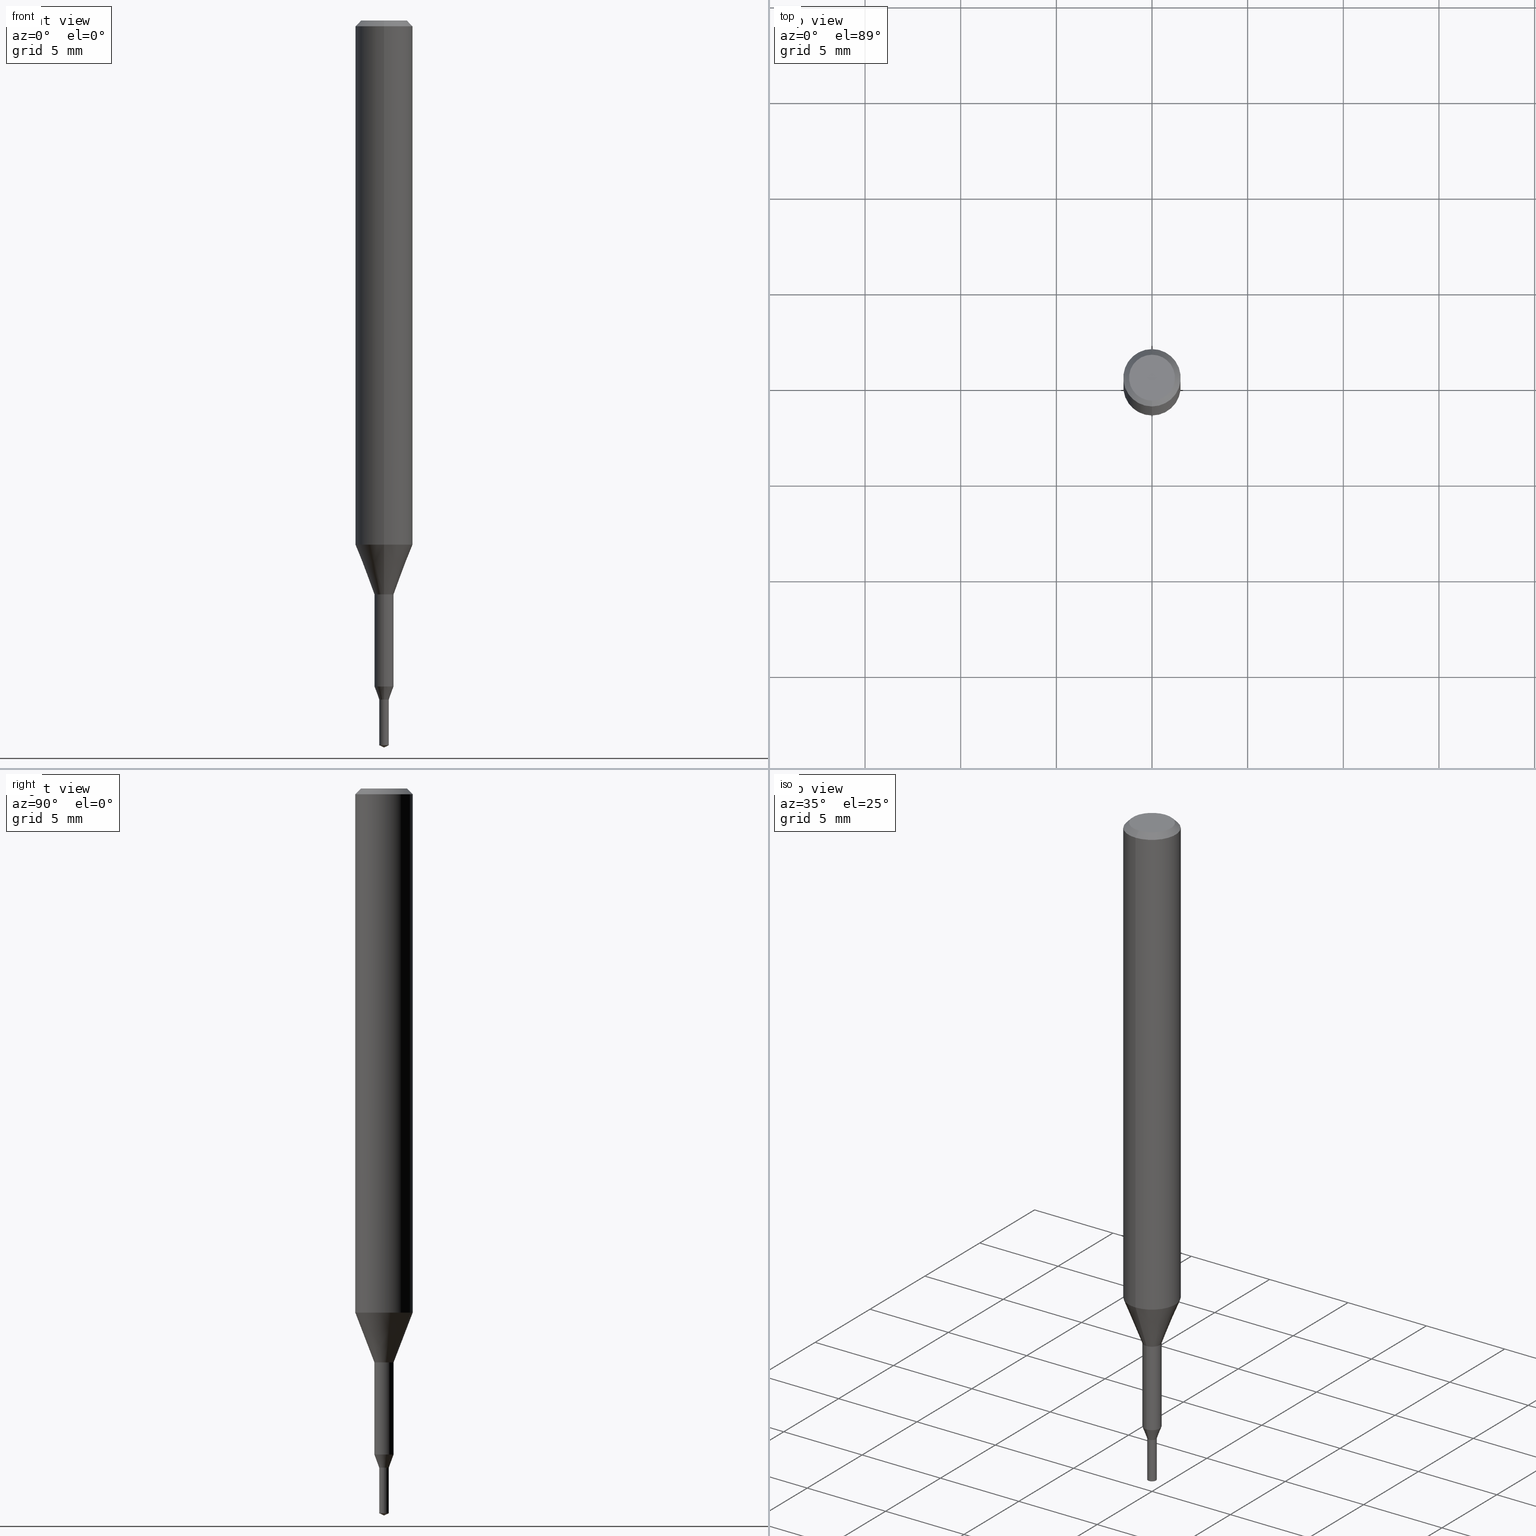
[diagram: canonical four-view strip — front | top / right | iso, engineering-drawing reading convention]
A machine part, canonical four-view strip (front | top / right | iso — engineering-drawing reading convention). The complete STEP part file that produces these views, byte-faithful:
ISO-10303-21;
HEADER;
FILE_DESCRIPTION(('no description'),'unknown implementation level');
FILE_NAME('UTDSX2050-025-Huellk.stp','  ',('CIMSOURCE GmbH'),('CADClick - KiM GmbH - www.kimweb.de'),'unknown preprocess','ACIS','unknown authorization');
FILE_SCHEMA(('automotive_design'));
ENDSEC;
DATA;
#1=MECHANICAL_DESIGN_GEOMETRIC_PRESENTATION_REPRESENTATION(' ',(#14,#15,#16,#17,#18,#19,#20,#21,#22,#23,#24,#25,#26,#27,#28,#29,#30,#31,#32,#33,#34,#35,#36,#37,#38,#39,#40,#41,#42,#43,#44,#45,#46,#47,#48,#49,#50,#51,#52,#53,#54,#55,#56,#57,#58,#59,#60,#61,#62,#63,#64,#65,#66,#67,#68,#69,#70,#71,#72,#73,#74,#75,#76,#77,#78,#79,#80,#81,#82,#83,#84,#85,#86,#87,#88,#89,#90,#91,#92),#10);
#2=PRODUCT_DEFINITION_CONTEXT('',#93,'design');
#3=APPLICATION_PROTOCOL_DEFINITION('INTERNATIONAL STANDARD','automotive_design',1994,#93);
#4=PRODUCT_CATEGORY_RELATIONSHIP('NONE','NONE',#94,#95);
#5=SHAPE_DEFINITION_REPRESENTATION(#96,#97);
#6=PRODUCT_DEFINITION_CONTEXT('',#98,'design');
#7=APPLICATION_PROTOCOL_DEFINITION('INTERNATIONAL STANDARD','automotive_design',1994,#98);
#8=PRODUCT_CATEGORY_RELATIONSHIP('NONE','NONE',#99,#100);
#9=SHAPE_DEFINITION_REPRESENTATION(#101,#102);
#10= (GEOMETRIC_REPRESENTATION_CONTEXT(3)GLOBAL_UNCERTAINTY_ASSIGNED_CONTEXT((#105))GLOBAL_UNIT_ASSIGNED_CONTEXT((#107,#108,#109))REPRESENTATION_CONTEXT('NONE','WORKSPACE'));
#14=STYLED_ITEM('',(#111),#112);
#15=STYLED_ITEM('',(#113),#114);
#16=STYLED_ITEM('',(#115),#116);
#17=STYLED_ITEM('',(#117),#118);
#18=STYLED_ITEM('',(#119),#120);
#19=STYLED_ITEM('',(#121),#122);
#20=STYLED_ITEM('',(#123),#124);
#21=STYLED_ITEM('',(#125),#126);
#22=STYLED_ITEM('',(#127),#128);
#23=STYLED_ITEM('',(#129),#130);
#24=STYLED_ITEM('',(#131),#132);
#25=STYLED_ITEM('',(#133),#134);
#26=STYLED_ITEM('',(#135),#136);
#27=STYLED_ITEM('',(#137),#138);
#28=STYLED_ITEM('',(#139),#140);
#29=STYLED_ITEM('',(#141),#142);
#30=STYLED_ITEM('',(#143),#144);
#31=STYLED_ITEM('',(#145),#146);
#32=STYLED_ITEM('',(#147),#148);
#33=STYLED_ITEM('',(#149),#150);
#34=STYLED_ITEM('',(#151),#152);
#35=STYLED_ITEM('',(#153),#154);
#36=STYLED_ITEM('',(#155),#156);
#37=STYLED_ITEM('',(#157),#158);
#38=STYLED_ITEM('',(#159),#160);
#39=STYLED_ITEM('',(#161),#162);
#40=STYLED_ITEM('',(#163),#164);
#41=STYLED_ITEM('',(#165),#166);
#42=STYLED_ITEM('',(#167),#168);
#43=STYLED_ITEM('',(#169),#170);
#44=STYLED_ITEM('',(#171),#172);
#45=STYLED_ITEM('',(#173),#174);
#46=STYLED_ITEM('',(#175),#176);
#47=STYLED_ITEM('',(#177),#178);
#48=STYLED_ITEM('',(#179),#180);
#49=STYLED_ITEM('',(#181),#182);
#50=STYLED_ITEM('',(#183),#184);
#51=STYLED_ITEM('',(#185),#186);
#52=STYLED_ITEM('',(#187),#188);
#53=STYLED_ITEM('',(#189),#190);
#54=STYLED_ITEM('',(#191),#192);
#55=STYLED_ITEM('',(#193),#194);
#56=STYLED_ITEM('',(#195),#196);
#57=STYLED_ITEM('',(#197),#198);
#58=STYLED_ITEM('',(#199),#200);
#59=STYLED_ITEM('',(#201),#202);
#60=STYLED_ITEM('',(#203),#204);
#61=STYLED_ITEM('',(#205),#206);
#62=STYLED_ITEM('',(#207),#208);
#63=STYLED_ITEM('',(#209),#210);
#64=STYLED_ITEM('',(#211),#212);
#65=STYLED_ITEM('',(#213),#214);
#66=STYLED_ITEM('',(#215),#216);
#67=STYLED_ITEM('',(#217),#218);
#68=STYLED_ITEM('',(#219),#220);
#69=STYLED_ITEM('',(#221),#222);
#70=STYLED_ITEM('',(#223),#224);
#71=STYLED_ITEM('',(#225),#226);
#72=STYLED_ITEM('',(#227),#228);
#73=STYLED_ITEM('',(#229),#230);
#74=STYLED_ITEM('',(#231),#232);
#75=STYLED_ITEM('',(#233),#234);
#76=STYLED_ITEM('',(#235),#236);
#77=STYLED_ITEM('',(#237),#238);
#78=STYLED_ITEM('',(#239),#240);
#79=STYLED_ITEM('',(#241),#242);
#80=STYLED_ITEM('',(#243),#244);
#81=STYLED_ITEM('',(#245),#246);
#82=STYLED_ITEM('',(#247),#248);
#83=STYLED_ITEM('',(#249),#250);
#84=STYLED_ITEM('',(#251),#252);
#85=STYLED_ITEM('',(#253),#254);
#86=STYLED_ITEM('',(#255),#256);
#87=STYLED_ITEM('',(#257),#258);
#88=STYLED_ITEM('',(#259),#260);
#89=STYLED_ITEM('',(#261),#262);
#90=STYLED_ITEM('',(#263),#264);
#91=STYLED_ITEM('',(#265),#266);
#92=STYLED_ITEM('',(#267),#268);
#93=APPLICATION_CONTEXT(' ');
#94=PRODUCT_CATEGORY('part','NONE');
#95=PRODUCT_RELATED_PRODUCT_CATEGORY('detail',' ',(#269));
#96=PRODUCT_DEFINITION_SHAPE('NONE','NONE',#270);
#97=ADVANCED_BREP_SHAPE_REPRESENTATION('1',(#146,#271),#10);
#98=APPLICATION_CONTEXT(' ');
#99=PRODUCT_CATEGORY('part','NONE');
#100=PRODUCT_RELATED_PRODUCT_CATEGORY('detail',' ',(#272));
#101=PRODUCT_DEFINITION_SHAPE('NONE','NONE',#273);
#102=ADVANCED_BREP_SHAPE_REPRESENTATION('2',(#128,#274),#10);
#105=UNCERTAINTY_MEASURE_WITH_UNIT(LENGTH_MEASURE(1.0E-006),#107,'','');
#107= (CONVERSION_BASED_UNIT('MILLIMETRE',#277)LENGTH_UNIT()NAMED_UNIT(#280));
#108= (NAMED_UNIT(#282)PLANE_ANGLE_UNIT()SI_UNIT($,.RADIAN.));
#109= (NAMED_UNIT(#282)SOLID_ANGLE_UNIT()SI_UNIT($,.STERADIAN.));
#111=PRESENTATION_STYLE_ASSIGNMENT((#288));
#112=EDGE_CURVE('',#122,#176,#289,.T.);
#113=PRESENTATION_STYLE_ASSIGNMENT((#290));
#114=VERTEX_POINT('',#291);
#115=PRESENTATION_STYLE_ASSIGNMENT((#292));
#116=EDGE_CURVE('',#132,#192,#293,.T.);
#117=PRESENTATION_STYLE_ASSIGNMENT((#294));
#118=EDGE_CURVE('',#148,#140,#295,.T.);
#119=PRESENTATION_STYLE_ASSIGNMENT((#296));
#120=EDGE_CURVE('',#236,#172,#297,.T.);
#121=PRESENTATION_STYLE_ASSIGNMENT((#298));
#122=VERTEX_POINT('',#299);
#123=PRESENTATION_STYLE_ASSIGNMENT((#300));
#124=ADVANCED_FACE('',(#301),#302,.T.);
#125=PRESENTATION_STYLE_ASSIGNMENT((#303));
#126=VERTEX_POINT('',#304);
#127=PRESENTATION_STYLE_ASSIGNMENT((#305));
#128=MANIFOLD_SOLID_BREP('2',#306);
#129=PRESENTATION_STYLE_ASSIGNMENT((#307));
#130=ADVANCED_FACE('',(#308),#309,.T.);
#131=PRESENTATION_STYLE_ASSIGNMENT((#310));
#132=VERTEX_POINT('',#311);
#133=PRESENTATION_STYLE_ASSIGNMENT((#312));
#134=EDGE_CURVE('',#216,#208,#313,.T.);
#135=PRESENTATION_STYLE_ASSIGNMENT((#314));
#136=ADVANCED_FACE('',(#315),#316,.T.);
#137=PRESENTATION_STYLE_ASSIGNMENT((#317));
#138=ADVANCED_FACE('',(#318),#319,.T.);
#139=PRESENTATION_STYLE_ASSIGNMENT((#320));
#140=VERTEX_POINT('',#321);
#141=PRESENTATION_STYLE_ASSIGNMENT((#322));
#142=EDGE_CURVE('',#212,#266,#323,.T.);
#143=PRESENTATION_STYLE_ASSIGNMENT((#324));
#144=ADVANCED_FACE('',(#325),#326,.T.);
#145=PRESENTATION_STYLE_ASSIGNMENT((#327));
#146=MANIFOLD_SOLID_BREP('1',#328);
#147=PRESENTATION_STYLE_ASSIGNMENT((#329));
#148=VERTEX_POINT('',#330);
#149=PRESENTATION_STYLE_ASSIGNMENT((#331));
#150=EDGE_CURVE('',#242,#226,#332,.T.);
#151=PRESENTATION_STYLE_ASSIGNMENT((#333));
#152=EDGE_CURVE('',#186,#154,#334,.T.);
#153=PRESENTATION_STYLE_ASSIGNMENT((#335));
#154=VERTEX_POINT('',#336);
#155=PRESENTATION_STYLE_ASSIGNMENT((#337));
#156=ADVANCED_FACE('',(#338),#339,.T.);
#157=PRESENTATION_STYLE_ASSIGNMENT((#340));
#158=VERTEX_POINT('',#341);
#159=PRESENTATION_STYLE_ASSIGNMENT((#342));
#160=EDGE_CURVE('',#222,#154,#343,.T.);
#161=PRESENTATION_STYLE_ASSIGNMENT((#344));
#162=ADVANCED_FACE('',(#345),#346,.T.);
#163=PRESENTATION_STYLE_ASSIGNMENT((#347));
#164=EDGE_CURVE('',#192,#140,#348,.T.);
#165=PRESENTATION_STYLE_ASSIGNMENT((#349));
#166=EDGE_CURVE('',#208,#192,#350,.T.);
#167=PRESENTATION_STYLE_ASSIGNMENT((#351));
#168=EDGE_CURVE('',#126,#222,#352,.T.);
#169=PRESENTATION_STYLE_ASSIGNMENT((#353));
#170=EDGE_CURVE('',#176,#122,#354,.T.);
#171=PRESENTATION_STYLE_ASSIGNMENT((#355));
#172=VERTEX_POINT('',#356);
#173=PRESENTATION_STYLE_ASSIGNMENT((#357));
#174=ADVANCED_FACE('',(#358),#359,.T.);
#175=PRESENTATION_STYLE_ASSIGNMENT((#360));
#176=VERTEX_POINT('',#361);
#177=PRESENTATION_STYLE_ASSIGNMENT((#362));
#178=EDGE_CURVE('',#114,#236,#363,.T.);
#179=PRESENTATION_STYLE_ASSIGNMENT((#364));
#180=EDGE_CURVE('',#242,#126,#365,.T.);
#181=PRESENTATION_STYLE_ASSIGNMENT((#366));
#182=EDGE_CURVE('',#158,#114,#367,.T.);
#183=PRESENTATION_STYLE_ASSIGNMENT((#368));
#184=EDGE_CURVE('',#258,#222,#369,.T.);
#185=PRESENTATION_STYLE_ASSIGNMENT((#370));
#186=VERTEX_POINT('',#371);
#187=PRESENTATION_STYLE_ASSIGNMENT((#372));
#188=EDGE_CURVE('',#212,#122,#373,.T.);
#189=PRESENTATION_STYLE_ASSIGNMENT((#374));
#190=EDGE_CURVE('',#222,#258,#375,.T.);
#191=PRESENTATION_STYLE_ASSIGNMENT((#376));
#192=VERTEX_POINT('',#377);
#193=PRESENTATION_STYLE_ASSIGNMENT((#378));
#194=EDGE_CURVE('',#266,#172,#379,.T.);
#195=PRESENTATION_STYLE_ASSIGNMENT((#380));
#196=EDGE_CURVE('',#236,#212,#381,.T.);
#197=PRESENTATION_STYLE_ASSIGNMENT((#382));
#198=EDGE_CURVE('',#266,#212,#383,.T.);
#199=PRESENTATION_STYLE_ASSIGNMENT((#384));
#200=EDGE_CURVE('',#148,#132,#385,.T.);
#201=PRESENTATION_STYLE_ASSIGNMENT((#386));
#202=EDGE_CURVE('',#186,#258,#387,.T.);
#203=PRESENTATION_STYLE_ASSIGNMENT((#388));
#204=ADVANCED_FACE('',(#389),#390,.T.);
#205=PRESENTATION_STYLE_ASSIGNMENT((#391));
#206=ADVANCED_FACE('',(#392),#393,.T.);
#207=PRESENTATION_STYLE_ASSIGNMENT((#394));
#208=VERTEX_POINT('',#395);
#209=PRESENTATION_STYLE_ASSIGNMENT((#396));
#210=ADVANCED_FACE('',(#397,#398),#399,.T.);
#211=PRESENTATION_STYLE_ASSIGNMENT((#400));
#212=VERTEX_POINT('',#401);
#213=PRESENTATION_STYLE_ASSIGNMENT((#402));
#214=EDGE_CURVE('',#114,#158,#403,.T.);
#215=PRESENTATION_STYLE_ASSIGNMENT((#404));
#216=VERTEX_POINT('',#405);
#217=PRESENTATION_STYLE_ASSIGNMENT((#406));
#218=EDGE_CURVE('',#208,#216,#407,.T.);
#219=PRESENTATION_STYLE_ASSIGNMENT((#408));
#220=EDGE_CURVE('',#172,#236,#409,.T.);
#221=PRESENTATION_STYLE_ASSIGNMENT((#410));
#222=VERTEX_POINT('',#411);
#223=PRESENTATION_STYLE_ASSIGNMENT((#412));
#224=EDGE_CURVE('',#132,#216,#413,.T.);
#225=PRESENTATION_STYLE_ASSIGNMENT((#414));
#226=VERTEX_POINT('',#415);
#227=PRESENTATION_STYLE_ASSIGNMENT((#416));
#228=EDGE_CURVE('',#154,#186,#417,.T.);
#229=PRESENTATION_STYLE_ASSIGNMENT((#418));
#230=EDGE_CURVE('',#192,#132,#419,.T.);
#231=PRESENTATION_STYLE_ASSIGNMENT((#420));
#232=EDGE_CURVE('',#258,#242,#421,.T.);
#233=PRESENTATION_STYLE_ASSIGNMENT((#422));
#234=ADVANCED_FACE('',(#423),#424,.T.);
#235=PRESENTATION_STYLE_ASSIGNMENT((#425));
#236=VERTEX_POINT('',#426);
#237=PRESENTATION_STYLE_ASSIGNMENT((#427));
#238=EDGE_CURVE('',#226,#126,#428,.T.);
#239=PRESENTATION_STYLE_ASSIGNMENT((#429));
#240=ADVANCED_FACE('',(#430),#431,.T.);
#241=PRESENTATION_STYLE_ASSIGNMENT((#432));
#242=VERTEX_POINT('',#433);
#243=PRESENTATION_STYLE_ASSIGNMENT((#434));
#244=ADVANCED_FACE('',(#435),#436,.T.);
#245=PRESENTATION_STYLE_ASSIGNMENT((#437));
#246=ADVANCED_FACE('',(#438),#439,.T.);
#247=PRESENTATION_STYLE_ASSIGNMENT((#440));
#248=ADVANCED_FACE('',(#441),#442,.T.);
#249=PRESENTATION_STYLE_ASSIGNMENT((#443));
#250=ADVANCED_FACE('',(#444),#445,.T.);
#251=PRESENTATION_STYLE_ASSIGNMENT((#446));
#252=EDGE_CURVE('',#140,#148,#447,.T.);
#253=PRESENTATION_STYLE_ASSIGNMENT((#448));
#254=EDGE_CURVE('',#126,#242,#449,.T.);
#255=PRESENTATION_STYLE_ASSIGNMENT((#450));
#256=ADVANCED_FACE('',(#451),#452,.T.);
#257=PRESENTATION_STYLE_ASSIGNMENT((#453));
#258=VERTEX_POINT('',#454);
#259=PRESENTATION_STYLE_ASSIGNMENT((#455));
#260=EDGE_CURVE('',#176,#266,#456,.T.);
#261=PRESENTATION_STYLE_ASSIGNMENT((#457));
#262=EDGE_CURVE('',#172,#158,#458,.T.);
#263=PRESENTATION_STYLE_ASSIGNMENT((#459));
#264=ADVANCED_FACE('',(#460),#461,.T.);
#265=PRESENTATION_STYLE_ASSIGNMENT((#462));
#266=VERTEX_POINT('',#463);
#267=PRESENTATION_STYLE_ASSIGNMENT((#464));
#268=ADVANCED_FACE('',(#465),#466,.T.);
#269=PRODUCT('1','1','PART-1-DESC',(#467));
#270=PRODUCT_DEFINITION('NONE','NONE',#468,#2);
#271=AXIS2_PLACEMENT_3D('',#469,#470,#471);
#272=PRODUCT('2','2','PART-2-DESC',(#472));
#273=PRODUCT_DEFINITION('NONE','NONE',#473,#6);
#274=AXIS2_PLACEMENT_3D('',#474,#475,#476);
#277=LENGTH_MEASURE_WITH_UNIT(LENGTH_MEASURE(1.0),#477);
#280=DIMENSIONAL_EXPONENTS(1.0,0.0,0.0,0.0,0.0,0.0,0.0);
#282=DIMENSIONAL_EXPONENTS(0.0,0.0,0.0,0.0,0.0,0.0,0.0);
#288=CURVE_STYLE('',#478,POSITIVE_LENGTH_MEASURE(1.0E-006),#479);
#289=CIRCLE('',#480,1.2);
#290=POINT_STYLE(' ',#481,POSITIVE_LENGTH_MEASURE(1.0E-006),#482);
#291=CARTESIAN_POINT('',(6.12303176911189E-017,-0.5,-30.0));
#292=CURVE_STYLE('',#483,POSITIVE_LENGTH_MEASURE(1.0E-006),#484);
#293=CIRCLE('',#485,0.49995);
#294=CURVE_STYLE('',#486,POSITIVE_LENGTH_MEASURE(1.0E-006),#487);
#295=CIRCLE('',#488,0.250036382823872);
#296=CURVE_STYLE('',#489,POSITIVE_LENGTH_MEASURE(1.0E-006),#490);
#297=CIRCLE('',#491,1.5);
#298=POINT_STYLE(' ',#492,POSITIVE_LENGTH_MEASURE(1.0E-006),#493);
#299=CARTESIAN_POINT('',(1.46952762458685E-016,-1.2,0.0));
#300=SURFACE_STYLE_USAGE(.BOTH.,#494);
#301=FACE_OUTER_BOUND('',#495,.T.);
#302=PLANE('',#496);
#303=POINT_STYLE(' ',#497,POSITIVE_LENGTH_MEASURE(1.0E-006),#498);
#304=CARTESIAN_POINT('',(0.25,3.06151588455594E-017,-37.88342309));
#305=SURFACE_STYLE_USAGE(.BOTH.,#499);
#306=CLOSED_SHELL('',(#264,#144,#268,#124,#136,#204,#162));
#307=SURFACE_STYLE_USAGE(.BOTH.,#500);
#308=FACE_OUTER_BOUND('',#501,.T.);
#309=CONICAL_SURFACE('',#502,0.374993191411936,0.348940459453639);
#310=POINT_STYLE(' ',#503,POSITIVE_LENGTH_MEASURE(1.0E-006),#504);
#311=CARTESIAN_POINT('',(6.12241946593498E-017,-0.49995,-34.813));
#312=CURVE_STYLE('',#505,POSITIVE_LENGTH_MEASURE(1.0E-006),#506);
#313=CIRCLE('',#507,0.49995);
#314=SURFACE_STYLE_USAGE(.BOTH.,#508);
#315=FACE_OUTER_BOUND('',#509,.T.);
#316=CONICAL_SURFACE('',#510,0.250518195050946,1.47460534053223);
#317=SURFACE_STYLE_USAGE(.BOTH.,#511);
#318=FACE_OUTER_BOUND('',#512,.T.);
#319=CONICAL_SURFACE('',#513,1.35,0.785398163397447);
#320=POINT_STYLE(' ',#514,POSITIVE_LENGTH_MEASURE(1.0E-006),#515);
#321=CARTESIAN_POINT('',(0.0,0.250036382823872,-35.4999));
#322=CURVE_STYLE('',#516,POSITIVE_LENGTH_MEASURE(1.0E-006),#517);
#323=CIRCLE('',#518,1.5);
#324=SURFACE_STYLE_USAGE(.BOTH.,#519);
#325=FACE_OUTER_BOUND('',#520,.T.);
#326=CYLINDRICAL_SURFACE('',#521,0.25);
#327=SURFACE_STYLE_USAGE(.BOTH.,#522);
#328=CLOSED_SHELL('',(#130,#174,#250,#244,#138,#206,#246,#248,#156,#210,#234,#240,#256));
#329=POINT_STYLE(' ',#523,POSITIVE_LENGTH_MEASURE(1.0E-006),#524);
#330=CARTESIAN_POINT('',(3.06196143092878E-017,-0.250036382823872,-35.4999));
#331=CURVE_STYLE('',#525,POSITIVE_LENGTH_MEASURE(1.0E-006),#526);
#332=LINE('',#527,#528);
#333=CURVE_STYLE('',#529,POSITIVE_LENGTH_MEASURE(1.0E-006),#530);
#334=CIRCLE('',#531,0.251036390101892);
#335=POINT_STYLE(' ',#532,POSITIVE_LENGTH_MEASURE(1.0E-006),#533);
#336=CARTESIAN_POINT('',(0.251036390101892,3.0742075835941E-017,-35.4999));
#337=SURFACE_STYLE_USAGE(.BOTH.,#534);
#338=FACE_OUTER_BOUND('',#535,.T.);
#339=CONICAL_SURFACE('',#536,1.0,0.366530581623394);
#340=POINT_STYLE(' ',#537,POSITIVE_LENGTH_MEASURE(1.0E-006),#538);
#341=CARTESIAN_POINT('',(0.0,0.5,-30.0));
#342=CURVE_STYLE('',#539,POSITIVE_LENGTH_MEASURE(1.0E-006),#540);
#343=LINE('',#541,#542);
#344=SURFACE_STYLE_USAGE(.BOTH.,#543);
#345=FACE_OUTER_BOUND('',#544,.T.);
#346=CONICAL_SURFACE('',#545,0.125,1.13446402870872);
#347=CURVE_STYLE('',#546,POSITIVE_LENGTH_MEASURE(1.0E-006),#547);
#348=LINE('',#548,#549);
#349=CURVE_STYLE('',#550,POSITIVE_LENGTH_MEASURE(1.0E-006),#551);
#350=LINE('',#552,#553);
#351=CURVE_STYLE('',#554,POSITIVE_LENGTH_MEASURE(1.0E-006),#555);
#352=LINE('',#556,#557);
#353=CURVE_STYLE('',#558,POSITIVE_LENGTH_MEASURE(1.0E-006),#559);
#354=CIRCLE('',#560,1.2);
#355=POINT_STYLE(' ',#561,POSITIVE_LENGTH_MEASURE(1.0E-006),#562);
#356=CARTESIAN_POINT('',(0.0,1.5,-27.395));
#357=SURFACE_STYLE_USAGE(.BOTH.,#563);
#358=FACE_OUTER_BOUND('',#564,.T.);
#359=CYLINDRICAL_SURFACE('',#565,0.49995);
#360=POINT_STYLE(' ',#566,POSITIVE_LENGTH_MEASURE(1.0E-006),#567);
#361=CARTESIAN_POINT('',(0.0,1.2,0.0));
#362=CURVE_STYLE('',#568,POSITIVE_LENGTH_MEASURE(1.0E-006),#569);
#363=LINE('',#570,#571);
#364=CURVE_STYLE('',#572,POSITIVE_LENGTH_MEASURE(1.0E-006),#573);
#365=CIRCLE('',#574,0.25);
#366=CURVE_STYLE('',#575,POSITIVE_LENGTH_MEASURE(1.0E-006),#576);
#367=CIRCLE('',#577,0.5);
#368=CURVE_STYLE('',#578,POSITIVE_LENGTH_MEASURE(1.0E-006),#579);
#369=CIRCLE('',#580,0.25);
#370=POINT_STYLE(' ',#581,POSITIVE_LENGTH_MEASURE(1.0E-006),#582);
#371=CARTESIAN_POINT('',(-0.251036390101892,0.0,-35.4999));
#372=CURVE_STYLE('',#583,POSITIVE_LENGTH_MEASURE(1.0E-006),#584);
#373=LINE('',#585,#586);
#374=CURVE_STYLE('',#587,POSITIVE_LENGTH_MEASURE(1.0E-006),#588);
#375=CIRCLE('',#589,0.25);
#376=POINT_STYLE(' ',#590,POSITIVE_LENGTH_MEASURE(1.0E-006),#591);
#377=CARTESIAN_POINT('',(0.0,0.49995,-34.813));
#378=CURVE_STYLE('',#592,POSITIVE_LENGTH_MEASURE(1.0E-006),#593);
#379=LINE('',#594,#595);
#380=CURVE_STYLE('',#596,POSITIVE_LENGTH_MEASURE(1.0E-006),#597);
#381=LINE('',#598,#599);
#382=CURVE_STYLE('',#600,POSITIVE_LENGTH_MEASURE(1.0E-006),#601);
#383=CIRCLE('',#602,1.5);
#384=CURVE_STYLE('',#603,POSITIVE_LENGTH_MEASURE(1.0E-006),#604);
#385=LINE('',#605,#606);
#386=CURVE_STYLE('',#607,POSITIVE_LENGTH_MEASURE(1.0E-006),#608);
#387=LINE('',#609,#610);
#388=SURFACE_STYLE_USAGE(.BOTH.,#611);
#389=FACE_OUTER_BOUND('',#612,.T.);
#390=CYLINDRICAL_SURFACE('',#613,0.25);
#391=SURFACE_STYLE_USAGE(.BOTH.,#614);
#392=FACE_OUTER_BOUND('',#615,.T.);
#393=PLANE('',#616);
#394=POINT_STYLE(' ',#617,POSITIVE_LENGTH_MEASURE(1.0E-006),#618);
#395=CARTESIAN_POINT('',(0.0,0.49995,-30.0));
#396=SURFACE_STYLE_USAGE(.BOTH.,#619);
#397=FACE_BOUND('',#620,.T.);
#398=FACE_OUTER_BOUND('',#621,.T.);
#399=PLANE('',#622);
#400=POINT_STYLE(' ',#623,POSITIVE_LENGTH_MEASURE(1.0E-006),#624);
#401=CARTESIAN_POINT('',(1.83690953073357E-016,-1.5,-0.300000000000001));
#402=CURVE_STYLE('',#625,POSITIVE_LENGTH_MEASURE(1.0E-006),#626);
#403=CIRCLE('',#627,0.5);
#404=POINT_STYLE(' ',#628,POSITIVE_LENGTH_MEASURE(1.0E-006),#629);
#405=CARTESIAN_POINT('',(6.12241946593498E-017,-0.49995,-30.0));
#406=CURVE_STYLE('',#630,POSITIVE_LENGTH_MEASURE(1.0E-006),#631);
#407=CIRCLE('',#632,0.49995);
#408=CURVE_STYLE('',#633,POSITIVE_LENGTH_MEASURE(1.0E-006),#634);
#409=CIRCLE('',#635,1.5);
#410=POINT_STYLE(' ',#636,POSITIVE_LENGTH_MEASURE(1.0E-006),#637);
#411=CARTESIAN_POINT('',(0.25,3.06151588455594E-017,-35.5));
#412=CURVE_STYLE('',#638,POSITIVE_LENGTH_MEASURE(1.0E-006),#639);
#413=LINE('',#640,#641);
#414=POINT_STYLE(' ',#642,POSITIVE_LENGTH_MEASURE(1.0E-006),#643);
#415=CARTESIAN_POINT('',(0.0,0.0,-38.0));
#416=CURVE_STYLE('',#644,POSITIVE_LENGTH_MEASURE(1.0E-006),#645);
#417=CIRCLE('',#646,0.251036390101892);
#418=CURVE_STYLE('',#647,POSITIVE_LENGTH_MEASURE(1.0E-006),#648);
#419=CIRCLE('',#649,0.49995);
#420=CURVE_STYLE('',#650,POSITIVE_LENGTH_MEASURE(1.0E-006),#651);
#421=LINE('',#652,#653);
#422=SURFACE_STYLE_USAGE(.BOTH.,#654);
#423=FACE_OUTER_BOUND('',#655,.T.);
#424=CYLINDRICAL_SURFACE('',#656,0.49995);
#425=POINT_STYLE(' ',#657,POSITIVE_LENGTH_MEASURE(1.0E-006),#658);
#426=CARTESIAN_POINT('',(1.83690953073357E-016,-1.5,-27.395));
#427=CURVE_STYLE('',#659,POSITIVE_LENGTH_MEASURE(1.0E-006),#660);
#428=LINE('',#661,#662);
#429=SURFACE_STYLE_USAGE(.BOTH.,#663);
#430=FACE_OUTER_BOUND('',#664,.T.);
#431=CONICAL_SURFACE('',#665,0.374993191411936,0.348940459453639);
#432=POINT_STYLE(' ',#666,POSITIVE_LENGTH_MEASURE(1.0E-006),#667);
#433=CARTESIAN_POINT('',(-0.25,0.0,-37.88342309));
#434=SURFACE_STYLE_USAGE(.BOTH.,#668);
#435=FACE_OUTER_BOUND('',#669,.T.);
#436=CYLINDRICAL_SURFACE('',#670,1.5);
#437=SURFACE_STYLE_USAGE(.BOTH.,#671);
#438=FACE_OUTER_BOUND('',#672,.T.);
#439=CONICAL_SURFACE('',#673,1.35,0.785398163397447);
#440=SURFACE_STYLE_USAGE(.BOTH.,#674);
#441=FACE_OUTER_BOUND('',#675,.T.);
#442=CYLINDRICAL_SURFACE('',#676,1.5);
#443=SURFACE_STYLE_USAGE(.BOTH.,#677);
#444=FACE_OUTER_BOUND('',#678,.T.);
#445=CONICAL_SURFACE('',#679,1.0,0.366530581623394);
#446=CURVE_STYLE('',#680,POSITIVE_LENGTH_MEASURE(1.0E-006),#681);
#447=CIRCLE('',#682,0.250036382823872);
#448=CURVE_STYLE('',#683,POSITIVE_LENGTH_MEASURE(1.0E-006),#684);
#449=CIRCLE('',#685,0.25);
#450=SURFACE_STYLE_USAGE(.BOTH.,#686);
#451=FACE_OUTER_BOUND('',#687,.T.);
#452=PLANE('',#688);
#453=POINT_STYLE(' ',#689,POSITIVE_LENGTH_MEASURE(1.0E-006),#690);
#454=CARTESIAN_POINT('',(-0.25,0.0,-35.5));
#455=CURVE_STYLE('',#691,POSITIVE_LENGTH_MEASURE(1.0E-006),#692);
#456=LINE('',#693,#694);
#457=CURVE_STYLE('',#695,POSITIVE_LENGTH_MEASURE(1.0E-006),#696);
#458=LINE('',#697,#698);
#459=SURFACE_STYLE_USAGE(.BOTH.,#699);
#460=FACE_OUTER_BOUND('',#700,.T.);
#461=CONICAL_SURFACE('',#701,0.125,1.13446402870872);
#462=POINT_STYLE(' ',#702,POSITIVE_LENGTH_MEASURE(1.0E-006),#703);
#463=CARTESIAN_POINT('',(0.0,1.5,-0.300000000000001));
#464=SURFACE_STYLE_USAGE(.BOTH.,#704);
#465=FACE_OUTER_BOUND('',#705,.T.);
#466=CONICAL_SURFACE('',#706,0.250518195050946,1.47460534053223);
#467=PRODUCT_CONTEXT('',#93,'mechanical');
#468=PRODUCT_DEFINITION_FORMATION_WITH_SPECIFIED_SOURCE(' ','NONE',#269,.NOT_KNOWN.);
#469=CARTESIAN_POINT('',(0.0,0.0,0.0));
#470=DIRECTION('',(0.0,0.0,1.0));
#471=DIRECTION('',(1.0,0.0,0.0));
#472=PRODUCT_CONTEXT('',#98,'mechanical');
#473=PRODUCT_DEFINITION_FORMATION_WITH_SPECIFIED_SOURCE(' ','NONE',#272,.NOT_KNOWN.);
#474=CARTESIAN_POINT('',(0.0,0.0,0.0));
#475=DIRECTION('',(0.0,0.0,1.0));
#476=DIRECTION('',(1.0,0.0,0.0));
#477= (NAMED_UNIT(#280)LENGTH_UNIT()SI_UNIT(.MILLI.,.METRE.));
#478=DRAUGHTING_PRE_DEFINED_CURVE_FONT('continuous');
#479=COLOUR_RGB('',0.498039215803146,0.498039215803146,0.498039215803146);
#480=AXIS2_PLACEMENT_3D('',#708,#709,#710);
#481=PRE_DEFINED_MARKER('');
#482=COLOUR_RGB('',0.498039215803146,0.498039215803146,0.498039215803146);
#483=DRAUGHTING_PRE_DEFINED_CURVE_FONT('continuous');
#484=COLOUR_RGB('',0.498039215803146,0.498039215803146,0.498039215803146);
#485=AXIS2_PLACEMENT_3D('',#711,#712,#713);
#486=DRAUGHTING_PRE_DEFINED_CURVE_FONT('continuous');
#487=COLOUR_RGB('',0.498039215803146,0.498039215803146,0.498039215803146);
#488=AXIS2_PLACEMENT_3D('',#714,#715,#716);
#489=DRAUGHTING_PRE_DEFINED_CURVE_FONT('continuous');
#490=COLOUR_RGB('',0.498039215803146,0.498039215803146,0.498039215803146);
#491=AXIS2_PLACEMENT_3D('',#717,#718,#719);
#492=PRE_DEFINED_MARKER('');
#493=COLOUR_RGB('',0.498039215803146,0.498039215803146,0.498039215803146);
#494=SURFACE_SIDE_STYLE('',(#720));
#495=EDGE_LOOP('',(#721,#722));
#496=AXIS2_PLACEMENT_3D('',#723,#724,#725);
#497=PRE_DEFINED_MARKER('');
#498=COLOUR_RGB('',0.800000011920929,0.800000011920929,0.800000011920929);
#499=SURFACE_SIDE_STYLE('',(#726));
#500=SURFACE_SIDE_STYLE('',(#727));
#501=EDGE_LOOP('',(#728,#729,#730,#731));
#502=AXIS2_PLACEMENT_3D('',#732,#733,#734);
#503=PRE_DEFINED_MARKER('');
#504=COLOUR_RGB('',0.498039215803146,0.498039215803146,0.498039215803146);
#505=DRAUGHTING_PRE_DEFINED_CURVE_FONT('continuous');
#506=COLOUR_RGB('',0.498039215803146,0.498039215803146,0.498039215803146);
#507=AXIS2_PLACEMENT_3D('',#735,#736,#737);
#508=SURFACE_SIDE_STYLE('',(#738));
#509=EDGE_LOOP('',(#739,#740,#741,#742));
#510=AXIS2_PLACEMENT_3D('',#743,#744,#745);
#511=SURFACE_SIDE_STYLE('',(#746));
#512=EDGE_LOOP('',(#747,#748,#749,#750));
#513=AXIS2_PLACEMENT_3D('',#751,#752,#753);
#514=PRE_DEFINED_MARKER('');
#515=COLOUR_RGB('',0.498039215803146,0.498039215803146,0.498039215803146);
#516=DRAUGHTING_PRE_DEFINED_CURVE_FONT('continuous');
#517=COLOUR_RGB('',0.498039215803146,0.498039215803146,0.498039215803146);
#518=AXIS2_PLACEMENT_3D('',#754,#755,#756);
#519=SURFACE_SIDE_STYLE('',(#757));
#520=EDGE_LOOP('',(#758,#759,#760,#761));
#521=AXIS2_PLACEMENT_3D('',#762,#763,#764);
#522=SURFACE_SIDE_STYLE('',(#765));
#523=PRE_DEFINED_MARKER('');
#524=COLOUR_RGB('',0.498039215803146,0.498039215803146,0.498039215803146);
#525=DRAUGHTING_PRE_DEFINED_CURVE_FONT('continuous');
#526=COLOUR_RGB('',0.800000011920929,0.800000011920929,0.800000011920929);
#527=CARTESIAN_POINT('',(-0.125,-1.53075794227797E-017,-37.941711545));
#528=VECTOR('',#766,1.0);
#529=DRAUGHTING_PRE_DEFINED_CURVE_FONT('continuous');
#530=COLOUR_RGB('',0.800000011920929,0.800000011920929,0.800000011920929);
#531=AXIS2_PLACEMENT_3D('',#767,#768,#769);
#532=PRE_DEFINED_MARKER('');
#533=COLOUR_RGB('',0.800000011920929,0.800000011920929,0.800000011920929);
#534=SURFACE_SIDE_STYLE('',(#770));
#535=EDGE_LOOP('',(#771,#772,#773,#774));
#536=AXIS2_PLACEMENT_3D('',#775,#776,#777);
#537=PRE_DEFINED_MARKER('');
#538=COLOUR_RGB('',0.498039215803146,0.498039215803146,0.498039215803146);
#539=DRAUGHTING_PRE_DEFINED_CURVE_FONT('continuous');
#540=COLOUR_RGB('',0.800000011920929,0.800000011920929,0.800000011920929);
#541=CARTESIAN_POINT('',(0.250518195050946,3.06786173407502E-017,-35.49995));
#542=VECTOR('',#778,1.0);
#543=SURFACE_SIDE_STYLE('',(#779));
#544=EDGE_LOOP('',(#780,#781,#782));
#545=AXIS2_PLACEMENT_3D('',#783,#784,#785);
#546=DRAUGHTING_PRE_DEFINED_CURVE_FONT('continuous');
#547=COLOUR_RGB('',0.498039215803146,0.498039215803146,0.498039215803146);
#548=CARTESIAN_POINT('',(-4.59219044843188E-017,0.374993191411936,-35.15645));
#549=VECTOR('',#786,1.0);
#550=DRAUGHTING_PRE_DEFINED_CURVE_FONT('continuous');
#551=COLOUR_RGB('',0.498039215803146,0.498039215803146,0.498039215803146);
#552=CARTESIAN_POINT('',(-6.12241946593498E-017,0.49995,-32.4065));
#553=VECTOR('',#787,1.0);
#554=DRAUGHTING_PRE_DEFINED_CURVE_FONT('continuous');
#555=COLOUR_RGB('',0.800000011920929,0.800000011920929,0.800000011920929);
#556=CARTESIAN_POINT('',(0.25,3.06151588455594E-017,-36.691711545));
#557=VECTOR('',#788,1.0);
#558=DRAUGHTING_PRE_DEFINED_CURVE_FONT('continuous');
#559=COLOUR_RGB('',0.498039215803146,0.498039215803146,0.498039215803146);
#560=AXIS2_PLACEMENT_3D('',#789,#790,#791);
#561=PRE_DEFINED_MARKER('');
#562=COLOUR_RGB('',0.498039215803146,0.498039215803146,0.498039215803146);
#563=SURFACE_SIDE_STYLE('',(#792));
#564=EDGE_LOOP('',(#793,#794,#795,#796));
#565=AXIS2_PLACEMENT_3D('',#797,#798,#799);
#566=PRE_DEFINED_MARKER('');
#567=COLOUR_RGB('',0.498039215803146,0.498039215803146,0.498039215803146);
#568=DRAUGHTING_PRE_DEFINED_CURVE_FONT('continuous');
#569=COLOUR_RGB('',0.498039215803146,0.498039215803146,0.498039215803146);
#570=CARTESIAN_POINT('',(1.22460635382238E-016,-1.0,-28.6975));
#571=VECTOR('',#800,1.0);
#572=DRAUGHTING_PRE_DEFINED_CURVE_FONT('continuous');
#573=COLOUR_RGB('',0.800000011920929,0.800000011920929,0.800000011920929);
#574=AXIS2_PLACEMENT_3D('',#801,#802,#803);
#575=DRAUGHTING_PRE_DEFINED_CURVE_FONT('continuous');
#576=COLOUR_RGB('',0.498039215803146,0.498039215803146,0.498039215803146);
#577=AXIS2_PLACEMENT_3D('',#804,#805,#806);
#578=DRAUGHTING_PRE_DEFINED_CURVE_FONT('continuous');
#579=COLOUR_RGB('',0.800000011920929,0.800000011920929,0.800000011920929);
#580=AXIS2_PLACEMENT_3D('',#807,#808,#809);
#581=PRE_DEFINED_MARKER('');
#582=COLOUR_RGB('',0.800000011920929,0.800000011920929,0.800000011920929);
#583=DRAUGHTING_PRE_DEFINED_CURVE_FONT('continuous');
#584=COLOUR_RGB('',0.498039215803146,0.498039215803146,0.498039215803146);
#585=CARTESIAN_POINT('',(1.65321857766021E-016,-1.35,-0.150000000000002));
#586=VECTOR('',#810,1.0);
#587=DRAUGHTING_PRE_DEFINED_CURVE_FONT('continuous');
#588=COLOUR_RGB('',0.800000011920929,0.800000011920929,0.800000011920929);
#589=AXIS2_PLACEMENT_3D('',#811,#812,#813);
#590=PRE_DEFINED_MARKER('');
#591=COLOUR_RGB('',0.498039215803146,0.498039215803146,0.498039215803146);
#592=DRAUGHTING_PRE_DEFINED_CURVE_FONT('continuous');
#593=COLOUR_RGB('',0.498039215803146,0.498039215803146,0.498039215803146);
#594=CARTESIAN_POINT('',(-1.83690953073357E-016,1.5,-13.8475));
#595=VECTOR('',#814,1.0);
#596=DRAUGHTING_PRE_DEFINED_CURVE_FONT('continuous');
#597=COLOUR_RGB('',0.498039215803146,0.498039215803146,0.498039215803146);
#598=CARTESIAN_POINT('',(1.83690953073357E-016,-1.5,-13.8475));
#599=VECTOR('',#815,1.0);
#600=DRAUGHTING_PRE_DEFINED_CURVE_FONT('continuous');
#601=COLOUR_RGB('',0.498039215803146,0.498039215803146,0.498039215803146);
#602=AXIS2_PLACEMENT_3D('',#816,#817,#818);
#603=DRAUGHTING_PRE_DEFINED_CURVE_FONT('continuous');
#604=COLOUR_RGB('',0.498039215803146,0.498039215803146,0.498039215803146);
#605=CARTESIAN_POINT('',(4.59219044843188E-017,-0.374993191411936,-35.15645));
#606=VECTOR('',#819,1.0);
#607=DRAUGHTING_PRE_DEFINED_CURVE_FONT('continuous');
#608=COLOUR_RGB('',0.800000011920929,0.800000011920929,0.800000011920929);
#609=CARTESIAN_POINT('',(-0.250518195050946,-3.06786173407502E-017,-35.49995));
#610=VECTOR('',#820,1.0);
#611=SURFACE_SIDE_STYLE('',(#821));
#612=EDGE_LOOP('',(#822,#823,#824,#825));
#613=AXIS2_PLACEMENT_3D('',#826,#827,#828);
#614=SURFACE_SIDE_STYLE('',(#829));
#615=EDGE_LOOP('',(#830,#831));
#616=AXIS2_PLACEMENT_3D('',#832,#833,#834);
#617=PRE_DEFINED_MARKER('');
#618=COLOUR_RGB('',0.498039215803146,0.498039215803146,0.498039215803146);
#619=SURFACE_SIDE_STYLE('',(#835));
#620=EDGE_LOOP('',(#836,#837));
#621=EDGE_LOOP('',(#838,#839));
#622=AXIS2_PLACEMENT_3D('',#840,#841,#842);
#623=PRE_DEFINED_MARKER('');
#624=COLOUR_RGB('',0.498039215803146,0.498039215803146,0.498039215803146);
#625=DRAUGHTING_PRE_DEFINED_CURVE_FONT('continuous');
#626=COLOUR_RGB('',0.498039215803146,0.498039215803146,0.498039215803146);
#627=AXIS2_PLACEMENT_3D('',#843,#844,#845);
#628=PRE_DEFINED_MARKER('');
#629=COLOUR_RGB('',0.498039215803146,0.498039215803146,0.498039215803146);
#630=DRAUGHTING_PRE_DEFINED_CURVE_FONT('continuous');
#631=COLOUR_RGB('',0.498039215803146,0.498039215803146,0.498039215803146);
#632=AXIS2_PLACEMENT_3D('',#846,#847,#848);
#633=DRAUGHTING_PRE_DEFINED_CURVE_FONT('continuous');
#634=COLOUR_RGB('',0.498039215803146,0.498039215803146,0.498039215803146);
#635=AXIS2_PLACEMENT_3D('',#849,#850,#851);
#636=PRE_DEFINED_MARKER('');
#637=COLOUR_RGB('',0.800000011920929,0.800000011920929,0.800000011920929);
#638=DRAUGHTING_PRE_DEFINED_CURVE_FONT('continuous');
#639=COLOUR_RGB('',0.498039215803146,0.498039215803146,0.498039215803146);
#640=CARTESIAN_POINT('',(6.12241946593498E-017,-0.49995,-32.4065));
#641=VECTOR('',#852,1.0);
#642=PRE_DEFINED_MARKER('');
#643=COLOUR_RGB('',0.800000011920929,0.800000011920929,0.800000011920929);
#644=DRAUGHTING_PRE_DEFINED_CURVE_FONT('continuous');
#645=COLOUR_RGB('',0.800000011920929,0.800000011920929,0.800000011920929);
#646=AXIS2_PLACEMENT_3D('',#853,#854,#855);
#647=DRAUGHTING_PRE_DEFINED_CURVE_FONT('continuous');
#648=COLOUR_RGB('',0.498039215803146,0.498039215803146,0.498039215803146);
#649=AXIS2_PLACEMENT_3D('',#856,#857,#858);
#650=DRAUGHTING_PRE_DEFINED_CURVE_FONT('continuous');
#651=COLOUR_RGB('',0.800000011920929,0.800000011920929,0.800000011920929);
#652=CARTESIAN_POINT('',(-0.25,-3.06151588455594E-017,-36.691711545));
#653=VECTOR('',#859,1.0);
#654=SURFACE_SIDE_STYLE('',(#860));
#655=EDGE_LOOP('',(#861,#862,#863,#864));
#656=AXIS2_PLACEMENT_3D('',#865,#866,#867);
#657=PRE_DEFINED_MARKER('');
#658=COLOUR_RGB('',0.498039215803146,0.498039215803146,0.498039215803146);
#659=DRAUGHTING_PRE_DEFINED_CURVE_FONT('continuous');
#660=COLOUR_RGB('',0.800000011920929,0.800000011920929,0.800000011920929);
#661=CARTESIAN_POINT('',(0.125,1.53075794227797E-017,-37.941711545));
#662=VECTOR('',#868,1.0);
#663=SURFACE_SIDE_STYLE('',(#869));
#664=EDGE_LOOP('',(#870,#871,#872,#873));
#665=AXIS2_PLACEMENT_3D('',#874,#875,#876);
#666=PRE_DEFINED_MARKER('');
#667=COLOUR_RGB('',0.800000011920929,0.800000011920929,0.800000011920929);
#668=SURFACE_SIDE_STYLE('',(#877));
#669=EDGE_LOOP('',(#878,#879,#880,#881));
#670=AXIS2_PLACEMENT_3D('',#882,#883,#884);
#671=SURFACE_SIDE_STYLE('',(#885));
#672=EDGE_LOOP('',(#886,#887,#888,#889));
#673=AXIS2_PLACEMENT_3D('',#890,#891,#892);
#674=SURFACE_SIDE_STYLE('',(#893));
#675=EDGE_LOOP('',(#894,#895,#896,#897));
#676=AXIS2_PLACEMENT_3D('',#898,#899,#900);
#677=SURFACE_SIDE_STYLE('',(#901));
#678=EDGE_LOOP('',(#902,#903,#904,#905));
#679=AXIS2_PLACEMENT_3D('',#906,#907,#908);
#680=DRAUGHTING_PRE_DEFINED_CURVE_FONT('continuous');
#681=COLOUR_RGB('',0.498039215803146,0.498039215803146,0.498039215803146);
#682=AXIS2_PLACEMENT_3D('',#909,#910,#911);
#683=DRAUGHTING_PRE_DEFINED_CURVE_FONT('continuous');
#684=COLOUR_RGB('',0.800000011920929,0.800000011920929,0.800000011920929);
#685=AXIS2_PLACEMENT_3D('',#912,#913,#914);
#686=SURFACE_SIDE_STYLE('',(#915));
#687=EDGE_LOOP('',(#916,#917));
#688=AXIS2_PLACEMENT_3D('',#918,#919,#920);
#689=PRE_DEFINED_MARKER('');
#690=COLOUR_RGB('',0.800000011920929,0.800000011920929,0.800000011920929);
#691=DRAUGHTING_PRE_DEFINED_CURVE_FONT('continuous');
#692=COLOUR_RGB('',0.498039215803146,0.498039215803146,0.498039215803146);
#693=CARTESIAN_POINT('',(-1.65321857766021E-016,1.35,-0.150000000000002));
#694=VECTOR('',#921,1.0);
#695=DRAUGHTING_PRE_DEFINED_CURVE_FONT('continuous');
#696=COLOUR_RGB('',0.498039215803146,0.498039215803146,0.498039215803146);
#697=CARTESIAN_POINT('',(-1.22460635382238E-016,1.0,-28.6975));
#698=VECTOR('',#922,1.0);
#699=SURFACE_SIDE_STYLE('',(#923));
#700=EDGE_LOOP('',(#924,#925,#926));
#701=AXIS2_PLACEMENT_3D('',#927,#928,#929);
#702=PRE_DEFINED_MARKER('');
#703=COLOUR_RGB('',0.498039215803146,0.498039215803146,0.498039215803146);
#704=SURFACE_SIDE_STYLE('',(#930));
#705=EDGE_LOOP('',(#931,#932,#933,#934));
#706=AXIS2_PLACEMENT_3D('',#935,#936,#937);
#708=CARTESIAN_POINT('',(0.0,0.0,0.0));
#709=DIRECTION('',(0.0,0.0,-1.0));
#710=DIRECTION('',(0.0,1.0,0.0));
#711=CARTESIAN_POINT('',(0.0,0.0,-34.813));
#712=DIRECTION('',(0.0,0.0,-1.0));
#713=DIRECTION('',(0.0,1.0,0.0));
#714=CARTESIAN_POINT('',(0.0,0.0,-35.4999));
#715=DIRECTION('',(0.0,0.0,-1.0));
#716=DIRECTION('',(0.0,1.0,0.0));
#717=CARTESIAN_POINT('',(0.0,0.0,-27.395));
#718=DIRECTION('',(0.0,0.0,-1.0));
#719=DIRECTION('',(0.0,1.0,0.0));
#720=SURFACE_STYLE_FILL_AREA(#938);
#721=ORIENTED_EDGE('',*,*,#152,.F.);
#722=ORIENTED_EDGE('',*,*,#228,.F.);
#723=CARTESIAN_POINT('',(-0.125518195050946,0.0,-35.4999));
#724=DIRECTION('',(0.0,0.0,1.0));
#725=DIRECTION('',(1.0,0.0,0.0));
#726=SURFACE_STYLE_FILL_AREA(#939);
#727=SURFACE_STYLE_FILL_AREA(#940);
#728=ORIENTED_EDGE('',*,*,#164,.F.);
#729=ORIENTED_EDGE('',*,*,#230,.T.);
#730=ORIENTED_EDGE('',*,*,#200,.F.);
#731=ORIENTED_EDGE('',*,*,#252,.F.);
#732=CARTESIAN_POINT('',(0.0,0.0,-35.15645));
#733=DIRECTION('',(-0.0,-0.0,1.0));
#734=DIRECTION('',(0.0,1.0,0.0));
#735=CARTESIAN_POINT('',(0.0,0.0,-30.0));
#736=DIRECTION('',(0.0,0.0,-1.0));
#737=DIRECTION('',(0.0,1.0,0.0));
#738=SURFACE_STYLE_FILL_AREA(#941);
#739=ORIENTED_EDGE('',*,*,#202,.T.);
#740=ORIENTED_EDGE('',*,*,#190,.F.);
#741=ORIENTED_EDGE('',*,*,#160,.T.);
#742=ORIENTED_EDGE('',*,*,#228,.T.);
#743=CARTESIAN_POINT('',(0.0,0.0,-35.49995));
#744=DIRECTION('',(-0.0,-0.0,1.0));
#745=DIRECTION('',(-1.0,0.0,0.0));
#746=SURFACE_STYLE_FILL_AREA(#942);
#747=ORIENTED_EDGE('',*,*,#260,.F.);
#748=ORIENTED_EDGE('',*,*,#170,.T.);
#749=ORIENTED_EDGE('',*,*,#188,.F.);
#750=ORIENTED_EDGE('',*,*,#198,.F.);
#751=CARTESIAN_POINT('',(0.0,0.0,-0.150000000000002));
#752=DIRECTION('',(0.0,-0.0,-1.0));
#753=DIRECTION('',(0.0,1.0,0.0));
#754=CARTESIAN_POINT('',(0.0,0.0,-0.300000000000001));
#755=DIRECTION('',(0.0,0.0,-1.0));
#756=DIRECTION('',(0.0,1.0,0.0));
#757=SURFACE_STYLE_FILL_AREA(#943);
#758=ORIENTED_EDGE('',*,*,#232,.F.);
#759=ORIENTED_EDGE('',*,*,#184,.T.);
#760=ORIENTED_EDGE('',*,*,#168,.F.);
#761=ORIENTED_EDGE('',*,*,#180,.F.);
#762=CARTESIAN_POINT('',(0.0,0.0,-36.691711545));
#763=DIRECTION('',(-0.0,-0.0,1.0));
#764=DIRECTION('',(-1.0,0.0,0.0));
#765=SURFACE_STYLE_FILL_AREA(#944);
#766=DIRECTION('',(0.906307793338905,1.10987028224156E-016,-0.422618248225469));
#767=CARTESIAN_POINT('',(0.0,0.0,-35.4999));
#768=DIRECTION('',(0.0,0.0,-1.0));
#769=DIRECTION('',(-1.0,0.0,0.0));
#770=SURFACE_STYLE_FILL_AREA(#945);
#771=ORIENTED_EDGE('',*,*,#262,.T.);
#772=ORIENTED_EDGE('',*,*,#214,.F.);
#773=ORIENTED_EDGE('',*,*,#178,.T.);
#774=ORIENTED_EDGE('',*,*,#120,.T.);
#775=CARTESIAN_POINT('',(0.0,0.0,-28.6975));
#776=DIRECTION('',(-0.0,-0.0,1.0));
#777=DIRECTION('',(0.0,1.0,0.0));
#778=DIRECTION('',(0.995377213171106,1.21894525969935E-016,0.0960427170571633));
#779=SURFACE_STYLE_FILL_AREA(#946);
#780=ORIENTED_EDGE('',*,*,#238,.T.);
#781=ORIENTED_EDGE('',*,*,#254,.T.);
#782=ORIENTED_EDGE('',*,*,#150,.T.);
#783=CARTESIAN_POINT('',(0.0,0.0,-37.941711545));
#784=DIRECTION('',(-0.0,-0.0,1.0));
#785=DIRECTION('',(-1.0,0.0,0.0));
#786=DIRECTION('',(4.18695743283678E-017,-0.341902311691262,-0.939735499627513));
#787=DIRECTION('',(0.0,0.0,-1.0));
#788=DIRECTION('',(-0.0,-0.0,1.0));
#789=CARTESIAN_POINT('',(0.0,0.0,0.0));
#790=DIRECTION('',(0.0,0.0,-1.0));
#791=DIRECTION('',(0.0,1.0,0.0));
#792=SURFACE_STYLE_FILL_AREA(#947);
#793=ORIENTED_EDGE('',*,*,#166,.F.);
#794=ORIENTED_EDGE('',*,*,#218,.T.);
#795=ORIENTED_EDGE('',*,*,#224,.F.);
#796=ORIENTED_EDGE('',*,*,#230,.F.);
#797=CARTESIAN_POINT('',(0.0,0.0,-32.4065));
#798=DIRECTION('',(-0.0,-0.0,1.0));
#799=DIRECTION('',(0.0,1.0,0.0));
#800=DIRECTION('',(4.38872745501645E-017,-0.35837862847256,0.933576327171018));
#801=CARTESIAN_POINT('',(0.0,0.0,-37.88342309));
#802=DIRECTION('',(0.0,0.0,-1.0));
#803=DIRECTION('',(-1.0,0.0,0.0));
#804=CARTESIAN_POINT('',(0.0,0.0,-30.0));
#805=DIRECTION('',(0.0,0.0,-1.0));
#806=DIRECTION('',(0.0,1.0,0.0));
#807=CARTESIAN_POINT('',(0.0,0.0,-35.5));
#808=DIRECTION('',(0.0,0.0,-1.0));
#809=DIRECTION('',(-1.0,0.0,0.0));
#810=DIRECTION('',(-8.65927457071934E-017,0.707106781186546,0.707106781186549));
#811=CARTESIAN_POINT('',(0.0,0.0,-35.5));
#812=DIRECTION('',(0.0,0.0,-1.0));
#813=DIRECTION('',(-1.0,0.0,0.0));
#814=DIRECTION('',(0.0,0.0,-1.0));
#815=DIRECTION('',(-0.0,-0.0,1.0));
#816=CARTESIAN_POINT('',(0.0,0.0,-0.300000000000001));
#817=DIRECTION('',(0.0,0.0,-1.0));
#818=DIRECTION('',(0.0,1.0,0.0));
#819=DIRECTION('',(4.18695743283679E-017,-0.341902311691262,0.939735499627513));
#820=DIRECTION('',(0.995377213171106,1.21894525969935E-016,-0.0960427170571633));
#821=SURFACE_STYLE_FILL_AREA(#948);
#822=ORIENTED_EDGE('',*,*,#232,.T.);
#823=ORIENTED_EDGE('',*,*,#254,.F.);
#824=ORIENTED_EDGE('',*,*,#168,.T.);
#825=ORIENTED_EDGE('',*,*,#190,.T.);
#826=CARTESIAN_POINT('',(0.0,0.0,-36.691711545));
#827=DIRECTION('',(-0.0,-0.0,1.0));
#828=DIRECTION('',(-1.0,0.0,0.0));
#829=SURFACE_STYLE_FILL_AREA(#949);
#830=ORIENTED_EDGE('',*,*,#170,.F.);
#831=ORIENTED_EDGE('',*,*,#112,.F.);
#832=CARTESIAN_POINT('',(0.0,0.6,0.0));
#833=DIRECTION('',(-0.0,0.0,1.0));
#834=DIRECTION('',(0.0,-1.0,0.0));
#835=SURFACE_STYLE_FILL_AREA(#950);
#836=ORIENTED_EDGE('',*,*,#218,.F.);
#837=ORIENTED_EDGE('',*,*,#134,.F.);
#838=ORIENTED_EDGE('',*,*,#182,.T.);
#839=ORIENTED_EDGE('',*,*,#214,.T.);
#840=CARTESIAN_POINT('',(0.0,0.499975,-30.0));
#841=DIRECTION('',(0.0,0.0,-1.0));
#842=DIRECTION('',(0.0,1.0,0.0));
#843=CARTESIAN_POINT('',(0.0,0.0,-30.0));
#844=DIRECTION('',(0.0,0.0,-1.0));
#845=DIRECTION('',(0.0,1.0,0.0));
#846=CARTESIAN_POINT('',(0.0,0.0,-30.0));
#847=DIRECTION('',(0.0,0.0,-1.0));
#848=DIRECTION('',(0.0,1.0,0.0));
#849=CARTESIAN_POINT('',(0.0,0.0,-27.395));
#850=DIRECTION('',(0.0,0.0,-1.0));
#851=DIRECTION('',(0.0,1.0,0.0));
#852=DIRECTION('',(-0.0,-0.0,1.0));
#853=CARTESIAN_POINT('',(0.0,0.0,-35.4999));
#854=DIRECTION('',(0.0,0.0,-1.0));
#855=DIRECTION('',(-1.0,0.0,0.0));
#856=CARTESIAN_POINT('',(0.0,0.0,-34.813));
#857=DIRECTION('',(0.0,0.0,-1.0));
#858=DIRECTION('',(0.0,1.0,0.0));
#859=DIRECTION('',(0.0,0.0,-1.0));
#860=SURFACE_STYLE_FILL_AREA(#951);
#861=ORIENTED_EDGE('',*,*,#166,.T.);
#862=ORIENTED_EDGE('',*,*,#116,.F.);
#863=ORIENTED_EDGE('',*,*,#224,.T.);
#864=ORIENTED_EDGE('',*,*,#134,.T.);
#865=CARTESIAN_POINT('',(0.0,0.0,-32.4065));
#866=DIRECTION('',(-0.0,-0.0,1.0));
#867=DIRECTION('',(0.0,1.0,0.0));
#868=DIRECTION('',(0.906307793338905,1.10987028224156E-016,0.422618248225469));
#869=SURFACE_STYLE_FILL_AREA(#952);
#870=ORIENTED_EDGE('',*,*,#164,.T.);
#871=ORIENTED_EDGE('',*,*,#118,.F.);
#872=ORIENTED_EDGE('',*,*,#200,.T.);
#873=ORIENTED_EDGE('',*,*,#116,.T.);
#874=CARTESIAN_POINT('',(0.0,0.0,-35.15645));
#875=DIRECTION('',(-0.0,-0.0,1.0));
#876=DIRECTION('',(0.0,1.0,0.0));
#877=SURFACE_STYLE_FILL_AREA(#953);
#878=ORIENTED_EDGE('',*,*,#194,.F.);
#879=ORIENTED_EDGE('',*,*,#198,.T.);
#880=ORIENTED_EDGE('',*,*,#196,.F.);
#881=ORIENTED_EDGE('',*,*,#220,.F.);
#882=CARTESIAN_POINT('',(0.0,0.0,-13.8475));
#883=DIRECTION('',(-0.0,-0.0,1.0));
#884=DIRECTION('',(0.0,1.0,0.0));
#885=SURFACE_STYLE_FILL_AREA(#954);
#886=ORIENTED_EDGE('',*,*,#260,.T.);
#887=ORIENTED_EDGE('',*,*,#142,.F.);
#888=ORIENTED_EDGE('',*,*,#188,.T.);
#889=ORIENTED_EDGE('',*,*,#112,.T.);
#890=CARTESIAN_POINT('',(0.0,0.0,-0.150000000000002));
#891=DIRECTION('',(0.0,-0.0,-1.0));
#892=DIRECTION('',(0.0,1.0,0.0));
#893=SURFACE_STYLE_FILL_AREA(#955);
#894=ORIENTED_EDGE('',*,*,#194,.T.);
#895=ORIENTED_EDGE('',*,*,#120,.F.);
#896=ORIENTED_EDGE('',*,*,#196,.T.);
#897=ORIENTED_EDGE('',*,*,#142,.T.);
#898=CARTESIAN_POINT('',(0.0,0.0,-13.8475));
#899=DIRECTION('',(-0.0,-0.0,1.0));
#900=DIRECTION('',(0.0,1.0,0.0));
#901=SURFACE_STYLE_FILL_AREA(#956);
#902=ORIENTED_EDGE('',*,*,#262,.F.);
#903=ORIENTED_EDGE('',*,*,#220,.T.);
#904=ORIENTED_EDGE('',*,*,#178,.F.);
#905=ORIENTED_EDGE('',*,*,#182,.F.);
#906=CARTESIAN_POINT('',(0.0,0.0,-28.6975));
#907=DIRECTION('',(-0.0,-0.0,1.0));
#908=DIRECTION('',(0.0,1.0,0.0));
#909=CARTESIAN_POINT('',(0.0,0.0,-35.4999));
#910=DIRECTION('',(0.0,0.0,-1.0));
#911=DIRECTION('',(0.0,1.0,0.0));
#912=CARTESIAN_POINT('',(0.0,0.0,-37.88342309));
#913=DIRECTION('',(0.0,0.0,-1.0));
#914=DIRECTION('',(-1.0,0.0,0.0));
#915=SURFACE_STYLE_FILL_AREA(#957);
#916=ORIENTED_EDGE('',*,*,#252,.T.);
#917=ORIENTED_EDGE('',*,*,#118,.T.);
#918=CARTESIAN_POINT('',(0.0,0.125018191411936,-35.4999));
#919=DIRECTION('',(0.0,0.0,-1.0));
#920=DIRECTION('',(0.0,1.0,0.0));
#921=DIRECTION('',(-8.65927457071934E-017,0.707106781186546,-0.707106781186549));
#922=DIRECTION('',(4.38872745501645E-017,-0.35837862847256,-0.933576327171018));
#923=SURFACE_STYLE_FILL_AREA(#958);
#924=ORIENTED_EDGE('',*,*,#238,.F.);
#925=ORIENTED_EDGE('',*,*,#150,.F.);
#926=ORIENTED_EDGE('',*,*,#180,.T.);
#927=CARTESIAN_POINT('',(0.0,0.0,-37.941711545));
#928=DIRECTION('',(-0.0,-0.0,1.0));
#929=DIRECTION('',(-1.0,0.0,0.0));
#930=SURFACE_STYLE_FILL_AREA(#959);
#931=ORIENTED_EDGE('',*,*,#202,.F.);
#932=ORIENTED_EDGE('',*,*,#152,.T.);
#933=ORIENTED_EDGE('',*,*,#160,.F.);
#934=ORIENTED_EDGE('',*,*,#184,.F.);
#935=CARTESIAN_POINT('',(0.0,0.0,-35.49995));
#936=DIRECTION('',(-0.0,-0.0,1.0));
#937=DIRECTION('',(-1.0,0.0,0.0));
#938=FILL_AREA_STYLE('',(#960));
#939=FILL_AREA_STYLE('',(#961));
#940=FILL_AREA_STYLE('',(#962));
#941=FILL_AREA_STYLE('',(#963));
#942=FILL_AREA_STYLE('',(#964));
#943=FILL_AREA_STYLE('',(#965));
#944=FILL_AREA_STYLE('',(#966));
#945=FILL_AREA_STYLE('',(#967));
#946=FILL_AREA_STYLE('',(#968));
#947=FILL_AREA_STYLE('',(#969));
#948=FILL_AREA_STYLE('',(#970));
#949=FILL_AREA_STYLE('',(#971));
#950=FILL_AREA_STYLE('',(#972));
#951=FILL_AREA_STYLE('',(#973));
#952=FILL_AREA_STYLE('',(#974));
#953=FILL_AREA_STYLE('',(#975));
#954=FILL_AREA_STYLE('',(#976));
#955=FILL_AREA_STYLE('',(#977));
#956=FILL_AREA_STYLE('',(#978));
#957=FILL_AREA_STYLE('',(#979));
#958=FILL_AREA_STYLE('',(#980));
#959=FILL_AREA_STYLE('',(#981));
#960=FILL_AREA_STYLE_COLOUR('',#982);
#961=FILL_AREA_STYLE_COLOUR('',#983);
#962=FILL_AREA_STYLE_COLOUR('',#984);
#963=FILL_AREA_STYLE_COLOUR('',#985);
#964=FILL_AREA_STYLE_COLOUR('',#986);
#965=FILL_AREA_STYLE_COLOUR('',#987);
#966=FILL_AREA_STYLE_COLOUR('',#988);
#967=FILL_AREA_STYLE_COLOUR('',#989);
#968=FILL_AREA_STYLE_COLOUR('',#990);
#969=FILL_AREA_STYLE_COLOUR('',#991);
#970=FILL_AREA_STYLE_COLOUR('',#992);
#971=FILL_AREA_STYLE_COLOUR('',#993);
#972=FILL_AREA_STYLE_COLOUR('',#994);
#973=FILL_AREA_STYLE_COLOUR('',#995);
#974=FILL_AREA_STYLE_COLOUR('',#996);
#975=FILL_AREA_STYLE_COLOUR('',#997);
#976=FILL_AREA_STYLE_COLOUR('',#998);
#977=FILL_AREA_STYLE_COLOUR('',#999);
#978=FILL_AREA_STYLE_COLOUR('',#1000);
#979=FILL_AREA_STYLE_COLOUR('',#1001);
#980=FILL_AREA_STYLE_COLOUR('',#1002);
#981=FILL_AREA_STYLE_COLOUR('',#1003);
#982=COLOUR_RGB('',0.800000011920929,0.800000011920929,0.800000011920929);
#983=COLOUR_RGB('',0.800000011920929,0.800000011920929,0.800000011920929);
#984=COLOUR_RGB('',0.498039215803146,0.498039215803146,0.498039215803146);
#985=COLOUR_RGB('',0.800000011920929,0.800000011920929,0.800000011920929);
#986=COLOUR_RGB('',0.498039215803146,0.498039215803146,0.498039215803146);
#987=COLOUR_RGB('',0.800000011920929,0.800000011920929,0.800000011920929);
#988=COLOUR_RGB('',0.498039215803146,0.498039215803146,0.498039215803146);
#989=COLOUR_RGB('',0.498039215803146,0.498039215803146,0.498039215803146);
#990=COLOUR_RGB('',0.800000011920929,0.800000011920929,0.800000011920929);
#991=COLOUR_RGB('',0.498039215803146,0.498039215803146,0.498039215803146);
#992=COLOUR_RGB('',0.800000011920929,0.800000011920929,0.800000011920929);
#993=COLOUR_RGB('',0.498039215803146,0.498039215803146,0.498039215803146);
#994=COLOUR_RGB('',0.498039215803146,0.498039215803146,0.498039215803146);
#995=COLOUR_RGB('',0.498039215803146,0.498039215803146,0.498039215803146);
#996=COLOUR_RGB('',0.498039215803146,0.498039215803146,0.498039215803146);
#997=COLOUR_RGB('',0.498039215803146,0.498039215803146,0.498039215803146);
#998=COLOUR_RGB('',0.498039215803146,0.498039215803146,0.498039215803146);
#999=COLOUR_RGB('',0.498039215803146,0.498039215803146,0.498039215803146);
#1000=COLOUR_RGB('',0.498039215803146,0.498039215803146,0.498039215803146);
#1001=COLOUR_RGB('',0.498039215803146,0.498039215803146,0.498039215803146);
#1002=COLOUR_RGB('',0.800000011920929,0.800000011920929,0.800000011920929);
#1003=COLOUR_RGB('',0.800000011920929,0.800000011920929,0.800000011920929);
#1004=AXIS2_PLACEMENT_3D('PCS',#1005,#1006,#1007);
#1005=CARTESIAN_POINT('',(0.0,0.0,0.0));
#1006=DIRECTION('',(0.0,0.0,1.0));
#1007=DIRECTION('',(1.0,0.0,0.0));
#1008=AXIS2_PLACEMENT_3D('CIP',#1009,#1010,#1011);
#1009=CARTESIAN_POINT('',(0.0,0.0,-38.0));
#1010=DIRECTION('',(0.0,0.0,1.0));
#1011=DIRECTION('',(1.0,0.0,0.0));
#1012=AXIS2_PLACEMENT_3D('CRP',#1013,#1014,#1015);
#1013=CARTESIAN_POINT('',(-0.25,0.0,-37.8834));
#1014=DIRECTION('',(0.0,0.0,1.0));
#1015=DIRECTION('',(1.0,0.0,0.0));
#1016=AXIS2_PLACEMENT_3D('MCS',#1017,#1018,#1019);
#1017=CARTESIAN_POINT('',(0.0,0.0,-27.395));
#1018=DIRECTION('',(0.0,0.0,1.0));
#1019=DIRECTION('',(1.0,0.0,0.0));
#1020=CONSTRUCTIVE_GEOMETRY_REPRESENTATION_RELATIONSHIP('coordinate systems',$,#97,#1021);
#1021=CONSTRUCTIVE_GEOMETRY_REPRESENTATION('coordinate systems',(#1004,#1008,#1012,#1016),#10);
ENDSEC;
END-ISO-10303-21;
